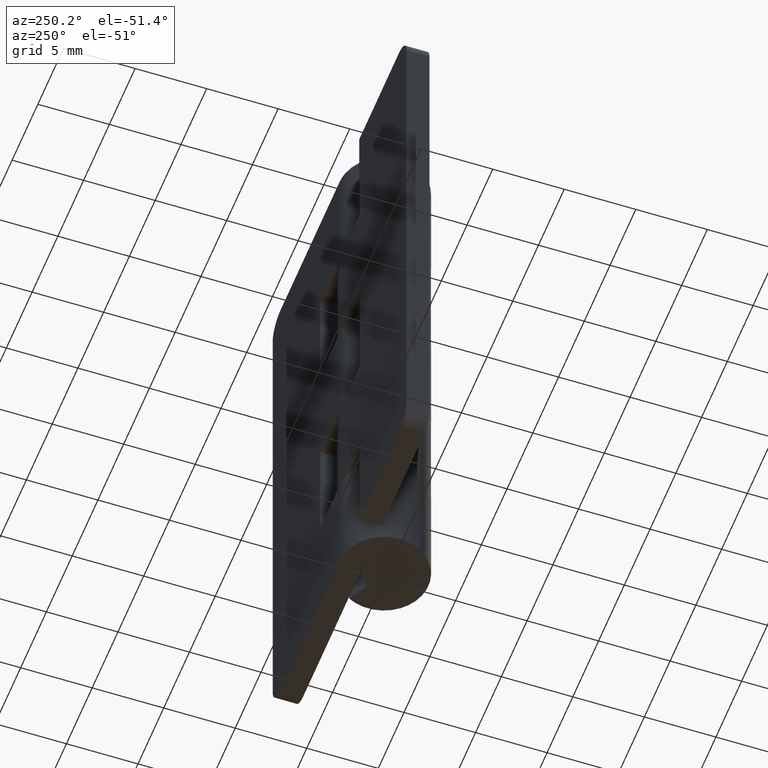
[diagram: clean part render]
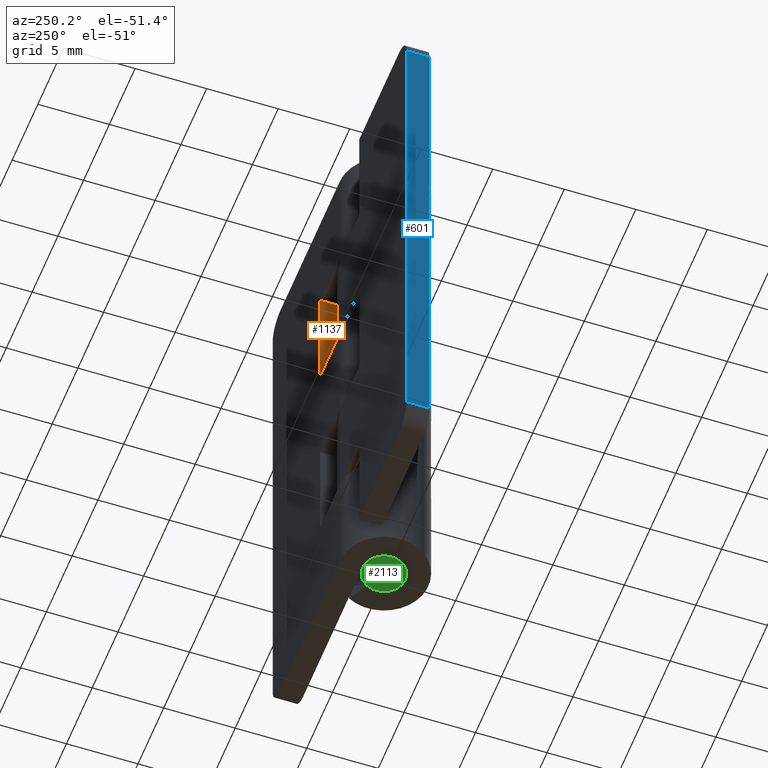
[diagram: same view with three faces highlighted in distinct colors, each labeled with its STEP entity id]
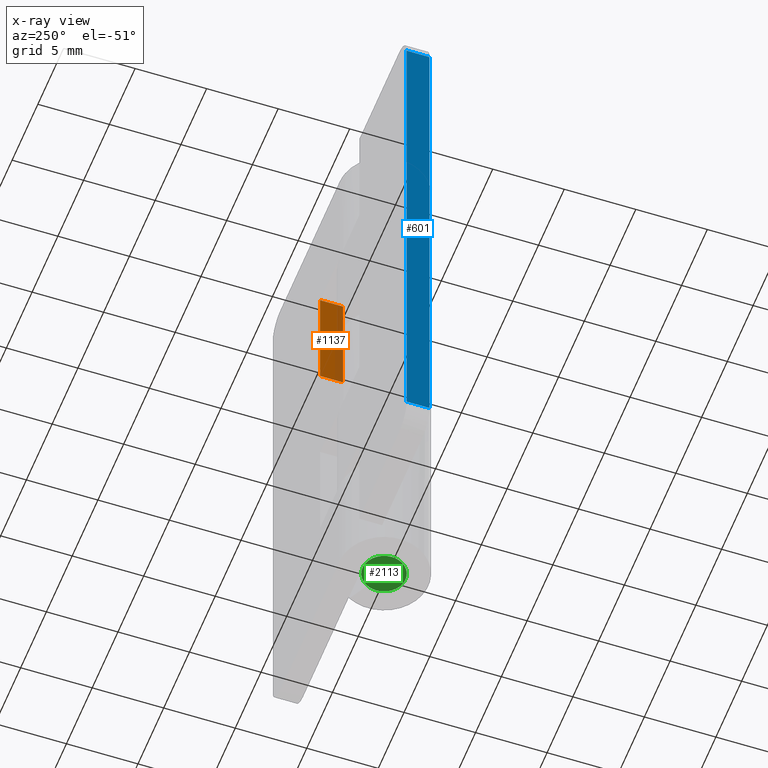
[diagram: x-ray of the same camera — body ghosted, the three highlighted faces saturated]
A machine part, auxiliary view with three faces highlighted in distinct colors.
The next image is the same camera in x-ray (body ghosted, the three faces saturated) — at least one of them is partly hidden behind the body in this view.
Their STEP definitions:

[orange] entity #1137 — the highlighted face is a freeform B-spline surface patch.
#1081=CARTESIAN_POINT('',(3.800004000000000,1.499999999999946,24.0));
#1082=VERTEX_POINT('',#1081);
#1088=CARTESIAN_POINT('',(3.800004000000000,3.099998000000050,24.0));
#1089=VERTEX_POINT('',#1088);
#1090=CARTESIAN_POINT('',(3.800004000000000,1.499999999999946,24.0));
#1091=CARTESIAN_POINT('',(3.800004000000000,3.099998000000050,24.0));
#1092=QUASI_UNIFORM_CURVE('',1,(#1090,#1091),.UNSPECIFIED.,.F.,.U.);
#1093=EDGE_CURVE('',#1082,#1089,#1092,.T.);
#1110=CARTESIAN_POINT('',(3.800004000000000,3.179917896998949,32.399599984494436));
#1111=CARTESIAN_POINT('',(3.800004000000000,3.179917896998949,23.600399800928830));
#1112=CARTESIAN_POINT('',(3.800004000000000,1.420080060085757,32.399599984494436));
#1113=CARTESIAN_POINT('',(3.800004000000000,1.420080060085757,23.600399800928830));
#1114=B_SPLINE_SURFACE_WITH_KNOTS('',1,1,((#1110,#1112),(#1111,#1113)),.UNSPECIFIED.,.F.,.F.,.U.,(2,2),(2,2),(0.0,8.799200183565617),(0.041708334948495,0.958291687403247),.UNSPECIFIED.);
#1115=CARTESIAN_POINT('',(3.800004000000000,1.499999999999946,32.0));
#1116=VERTEX_POINT('',#1115);
#1117=CARTESIAN_POINT('',(3.800004000000000,3.099998000000050,32.0));
#1118=VERTEX_POINT('',#1117);
#1119=CARTESIAN_POINT('',(3.800004000000000,1.499999999999946,32.0));
#1120=CARTESIAN_POINT('',(3.800004000000000,3.099998000000050,32.0));
#1121=QUASI_UNIFORM_CURVE('',1,(#1119,#1120),.UNSPECIFIED.,.F.,.U.);
#1122=EDGE_CURVE('',#1116,#1118,#1121,.T.);
#1123=ORIENTED_EDGE('',*,*,#1122,.T.);
#1124=CARTESIAN_POINT('',(3.800004000000000,3.099998000000050,32.0));
#1125=CARTESIAN_POINT('',(3.800004000000000,3.099998000000050,24.0));
#1126=QUASI_UNIFORM_CURVE('',1,(#1124,#1125),.UNSPECIFIED.,.F.,.U.);
#1127=EDGE_CURVE('',#1118,#1089,#1126,.T.);
#1128=ORIENTED_EDGE('',*,*,#1127,.T.);
#1129=ORIENTED_EDGE('',*,*,#1093,.F.);
#1130=CARTESIAN_POINT('',(3.800004000000000,1.499999999999946,32.0));
#1131=CARTESIAN_POINT('',(3.800004000000000,1.499999999999946,24.0));
#1132=QUASI_UNIFORM_CURVE('',1,(#1130,#1131),.UNSPECIFIED.,.F.,.U.);
#1133=EDGE_CURVE('',#1116,#1082,#1132,.T.);
#1134=ORIENTED_EDGE('',*,*,#1133,.F.);
#1135=EDGE_LOOP('',(#1123,#1128,#1129,#1134));
#1136=FACE_OUTER_BOUND('',#1135,.T.);
#1137=ADVANCED_FACE('',(#1136),#1114,.T.);

[blue] entity #601 — the highlighted face is a freeform B-spline surface patch.
#60=CARTESIAN_POINT('',(-13.0,1.500000000000000,38.500000000000000));
#61=VERTEX_POINT('',#60);
#82=CARTESIAN_POINT('',(-13.0,3.099998000000000,38.500000000000000));
#83=VERTEX_POINT('',#82);
#97=CARTESIAN_POINT('',(-13.0,1.500000000000000,38.500000000000000));
#98=CARTESIAN_POINT('',(-13.0,3.099998000000000,38.500000000000000));
#99=QUASI_UNIFORM_CURVE('',1,(#97,#98),.UNSPECIFIED.,.F.,.U.);
#100=EDGE_CURVE('',#61,#83,#99,.T.);
#119=CARTESIAN_POINT('',(-13.0,1.500000000000000,1.499999999999946));
#120=VERTEX_POINT('',#119);
#136=CARTESIAN_POINT('',(-13.0,3.099998000000000,1.499999999999946));
#137=VERTEX_POINT('',#136);
#138=CARTESIAN_POINT('',(-13.0,3.099998000000000,1.499999999999946));
#139=CARTESIAN_POINT('',(-13.0,1.500000000000000,1.499999999999946));
#140=QUASI_UNIFORM_CURVE('',1,(#138,#139),.UNSPECIFIED.,.F.,.U.);
#141=EDGE_CURVE('',#137,#120,#140,.T.);
#582=CARTESIAN_POINT('',(-13.0,1.420080103001107,-0.348149928286871));
#583=CARTESIAN_POINT('',(-13.0,1.420080103001107,40.348150920704157));
#584=CARTESIAN_POINT('',(-13.0,3.179917939914184,-0.348149928286871));
#585=CARTESIAN_POINT('',(-13.0,3.179917939914184,40.348150920704157));
#586=B_SPLINE_SURFACE_WITH_KNOTS('',1,1,((#582,#584),(#583,#585)),.UNSPECIFIED.,.F.,.F.,.U.,(2,2),(2,2),(0.0,40.696300848991029),(0.041708334948495,0.958291687403247),.UNSPECIFIED.);
#587=CARTESIAN_POINT('',(-13.0,3.099998000000000,38.500000000000000));
#588=CARTESIAN_POINT('',(-13.0,3.099998000000000,1.499999999999946));
#589=QUASI_UNIFORM_CURVE('',1,(#587,#588),.UNSPECIFIED.,.F.,.U.);
#590=EDGE_CURVE('',#83,#137,#589,.T.);
#591=ORIENTED_EDGE('',*,*,#590,.T.);
#592=ORIENTED_EDGE('',*,*,#141,.T.);
#593=CARTESIAN_POINT('',(-13.0,1.500000000000000,38.500000000000000));
#594=CARTESIAN_POINT('',(-13.0,1.500000000000000,1.499999999999946));
#595=QUASI_UNIFORM_CURVE('',1,(#593,#594),.UNSPECIFIED.,.F.,.U.);
#596=EDGE_CURVE('',#61,#120,#595,.T.);
#597=ORIENTED_EDGE('',*,*,#596,.F.);
#598=ORIENTED_EDGE('',*,*,#100,.T.);
#599=EDGE_LOOP('',(#591,#592,#597,#598));
#600=FACE_OUTER_BOUND('',#599,.T.);
#601=ADVANCED_FACE('',(#600),#586,.T.);

[green] entity #2113 — the highlighted face is a freeform B-spline surface patch.
#1934=CARTESIAN_POINT('',(0.177048581627317,-1.489514618839295,-4.543085E-015));
#1935=VERTEX_POINT('',#1934);
#1936=CARTESIAN_POINT('',(-1.500000000000000,0.0,0.0));
#1937=VERTEX_POINT('',#1936);
#1938=CARTESIAN_POINT('',(0.177048581627317,-1.489514618839296,-4.543085E-015));
#1939=CARTESIAN_POINT('',(0.088834779655407,-1.500000000000000,0.0));
#1940=CARTESIAN_POINT('',(0.0,-1.500000000000000,0.0));
#1941=CARTESIAN_POINT('',(-1.500000000000000,-1.500000000000000,0.0));
#1942=CARTESIAN_POINT('',(-1.500000000000000,0.0,0.0));
#1950=(BOUNDED_CURVE()B_SPLINE_CURVE(2,(#1938,#1939,#1940,#1941,#1942),.UNSPECIFIED.,.F.,.U.)B_SPLINE_CURVE_WITH_KNOTS((3,2,3),(0.229562787845978,0.250000000000000,0.500000000000000),.UNSPECIFIED.)CURVE()GEOMETRIC_REPRESENTATION_ITEM()RATIONAL_B_SPLINE_CURVE((0.956027370289129,0.976056316594540,1.0,0.707106781186548,1.0))REPRESENTATION_ITEM(''));
#1951=EDGE_CURVE('',#1935,#1937,#1950,.T.);
#1992=CARTESIAN_POINT('',(-0.091572809322920,1.497202197631538,1.110223E-016));
#1993=VERTEX_POINT('',#1992);
#1999=CARTESIAN_POINT('',(-1.500000000000000,0.0,0.0));
#2000=CARTESIAN_POINT('',(-1.500000000000000,1.411059100319583,0.0));
#2001=CARTESIAN_POINT('',(-0.091572809322920,1.497202197631539,1.110223E-016));
#2009=(BOUNDED_CURVE()B_SPLINE_CURVE(2,(#1999,#2000,#2001),.UNSPECIFIED.,.F.,.U.)B_SPLINE_CURVE_WITH_KNOTS((3,3),(0.500000000000000,0.739332962237213),.UNSPECIFIED.)CURVE()GEOMETRIC_REPRESENTATION_ITEM()RATIONAL_B_SPLINE_CURVE((1.0,0.719603993288737,0.976072041663010))REPRESENTATION_ITEM(''));
#2010=EDGE_CURVE('',#1937,#1993,#2009,.T.);
#2037=CARTESIAN_POINT('',(1.500000000000000,0.0,0.0));
#2038=VERTEX_POINT('',#2037);
#2039=CARTESIAN_POINT('',(1.500000000000000,0.0,0.0));
#2040=CARTESIAN_POINT('',(1.500000000000001,-1.332264284254892,0.0));
#2041=CARTESIAN_POINT('',(0.177048581627317,-1.489514618839296,-4.543085E-015));
#2049=(BOUNDED_CURVE()B_SPLINE_CURVE(2,(#2039,#2040,#2041),.UNSPECIFIED.,.F.,.U.)B_SPLINE_CURVE_WITH_KNOTS((3,3),(0.0,0.229562787845978),.UNSPECIFIED.)CURVE()GEOMETRIC_REPRESENTATION_ITEM()RATIONAL_B_SPLINE_CURVE((1.0,0.731050464592008,0.956027370289129))REPRESENTATION_ITEM(''));
#2050=EDGE_CURVE('',#2038,#1935,#2049,.T.);
#2052=CARTESIAN_POINT('',(-0.091572809322920,1.497202197631538,1.110223E-016));
#2053=CARTESIAN_POINT('',(-0.045829144968576,1.500000000000000,0.0));
#2054=CARTESIAN_POINT('',(0.0,1.500000000000000,0.0));
#2055=CARTESIAN_POINT('',(1.500000000000000,1.500000000000000,0.0));
#2056=CARTESIAN_POINT('',(1.500000000000000,0.0,0.0));
#2064=(BOUNDED_CURVE()B_SPLINE_CURVE(2,(#2052,#2053,#2054,#2055,#2056),.UNSPECIFIED.,.F.,.U.)B_SPLINE_CURVE_WITH_KNOTS((3,2,3),(0.739332962237212,0.750000000000000,1.0),.UNSPECIFIED.)CURVE()GEOMETRIC_REPRESENTATION_ITEM()RATIONAL_B_SPLINE_CURVE((0.976072041663009,0.987502787897810,1.0,0.707106781186548,1.0))REPRESENTATION_ITEM(''));
#2065=EDGE_CURVE('',#1993,#2038,#2064,.T.);
#2102=CARTESIAN_POINT('',(-1.649849994185418,-1.649822796803121,0.0));
#2103=CARTESIAN_POINT('',(1.649850074651688,-1.649822796803121,0.0));
#2104=CARTESIAN_POINT('',(-1.649849994185418,1.649813489537839,0.0));
#2105=CARTESIAN_POINT('',(1.649850074651688,1.649813489537839,0.0));
#2106=B_SPLINE_SURFACE_WITH_KNOTS('',1,1,((#2102,#2104),(#2103,#2105)),.UNSPECIFIED.,.F.,.F.,.U.,(2,2),(2,2),(0.0,3.299700068837106),(0.0,3.299636286340959),.UNSPECIFIED.);
#2107=ORIENTED_EDGE('',*,*,#2050,.T.);
#2108=ORIENTED_EDGE('',*,*,#1951,.T.);
#2109=ORIENTED_EDGE('',*,*,#2010,.T.);
#2110=ORIENTED_EDGE('',*,*,#2065,.T.);
#2111=EDGE_LOOP('',(#2107,#2108,#2109,#2110));
#2112=FACE_OUTER_BOUND('',#2111,.T.);
#2113=ADVANCED_FACE('',(#2112),#2106,.F.);